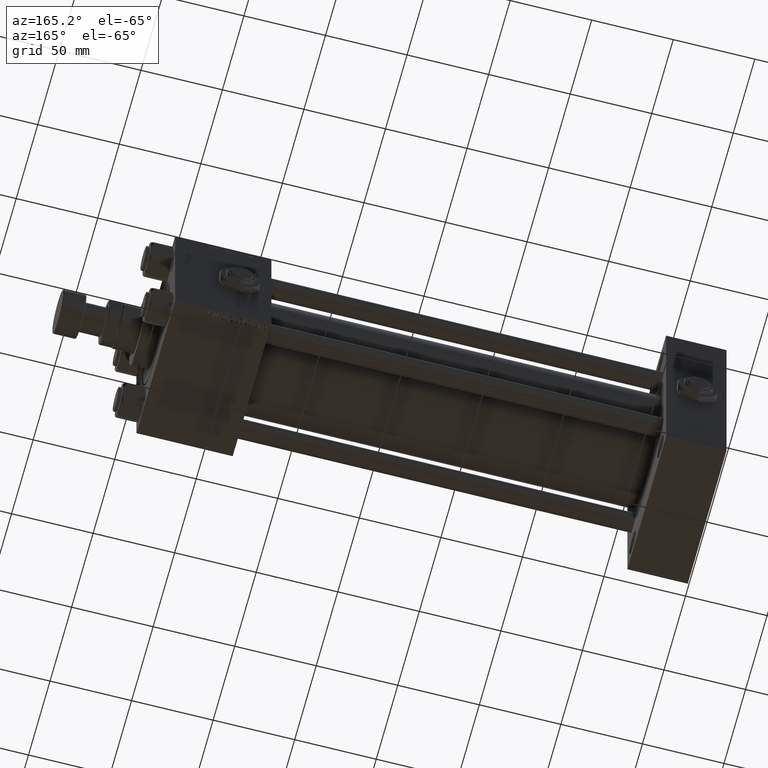
[diagram: clean part render]
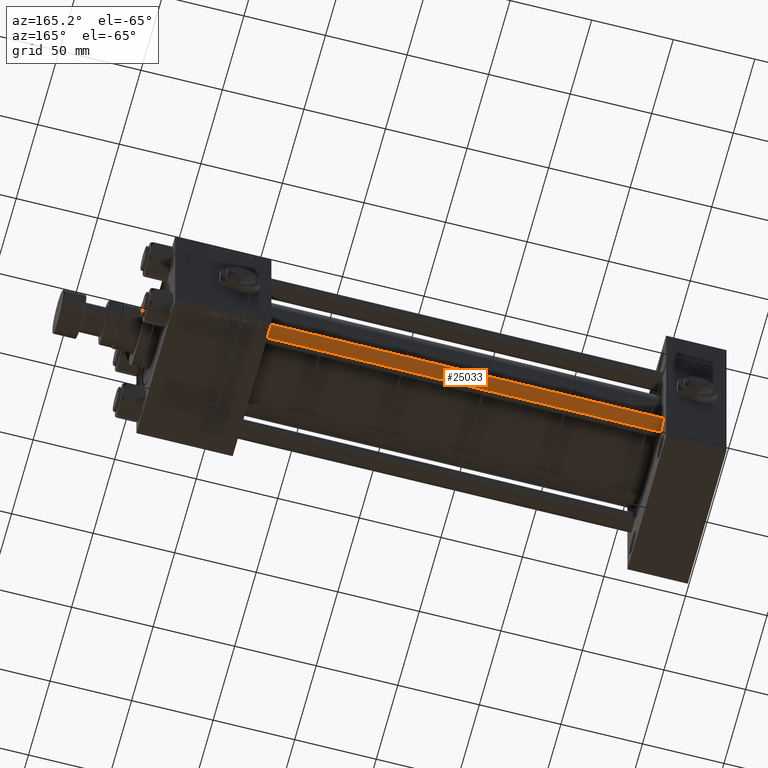
[diagram: same view with one face highlighted and labeled with its STEP entity id]
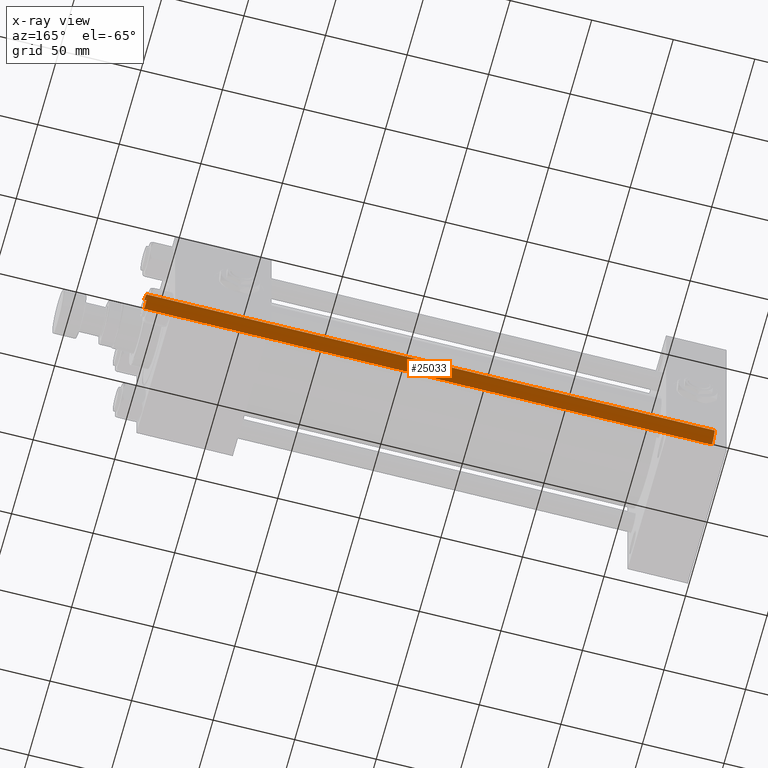
[diagram: x-ray of the same camera — body ghosted, the highlighted face saturated]
A machine part, auxiliary view. The second image highlights one B-rep face of the part: STEP entity #25033.
The next image is the same camera in x-ray: the body ghosted, the highlighted face saturated — about 0% of this face is hidden behind the body in this view.
In plain terms, the highlighted cylindrical surface (edge-blend (fillet) strip) has radius 6 mm, axis along (-1, 0, 0).
Its self-contained STEP definition (entity closure, byte-faithful):
#87 = DIRECTION ( 'NONE',  ( -0.000000000000000000, -0.000000000000000000, -1.000000000000000000 ) ) ;
#224 = DIRECTION ( 'NONE',  ( 1.000000000000000000, 0.000000000000000000, 0.000000000000000000 ) ) ;
#267 = DIRECTION ( 'NONE',  ( 1.000000000000000000, 0.000000000000000000, 0.000000000000000000 ) ) ;
#1106 = CIRCLE ( 'NONE', #41027, 6.000000000000000888 ) ;
#1336 = EDGE_CURVE ( 'NONE', #21542, #2844, #39278, .T. ) ;
#2844 = VERTEX_POINT ( 'NONE', #48236 ) ;
#3110 = EDGE_CURVE ( 'NONE', #14592, #42443, #1106, .T. ) ;
#3731 = DIRECTION ( 'NONE',  ( -0.000000000000000000, -0.000000000000000000, 1.000000000000000000 ) ) ;
#4576 = EDGE_CURVE ( 'NONE', #21542, #42443, #12332, .T. ) ;
#9171 = EDGE_LOOP ( 'NONE', ( #9576, #41126, #20007, #14431 ) ) ;
#9251 = CARTESIAN_POINT ( 'NONE',  ( 6.000000000000000888, 7.347880794884120722E-16, 348.5000000000000568 ) ) ;
#9576 = ORIENTED_EDGE ( 'NONE', *, *, #4576, .F. ) ;
#12332 = LINE ( 'NONE', #43966, #27568 ) ;
#12475 = CARTESIAN_POINT ( 'NONE',  ( 0.000000000000000000, 0.000000000000000000, 348.5000000000000568 ) ) ;
#14431 = ORIENTED_EDGE ( 'NONE', *, *, #3110, .T. ) ;
#14507 = CYLINDRICAL_SURFACE ( 'NONE', #41012, 6.000000000000000888 ) ;
#14592 = VERTEX_POINT ( 'NONE', #18352 ) ;
#14910 = VECTOR ( 'NONE', #20105, 1000.000000000000000 ) ;
#18352 = CARTESIAN_POINT ( 'NONE',  ( -6.000000000000000888, 0.000000000000000000, 0.5000000000000559552 ) ) ;
#20007 = ORIENTED_EDGE ( 'NONE', *, *, #31230, .T. ) ;
#20105 = DIRECTION ( 'NONE',  ( -0.000000000000000000, -0.000000000000000000, -1.000000000000000000 ) ) ;
#20648 = LINE ( 'NONE', #44042, #14910 ) ;
#20975 = DIRECTION ( 'NONE',  ( 0.000000000000000000, 0.000000000000000000, -1.000000000000000000 ) ) ;
#21542 = VERTEX_POINT ( 'NONE', #9251 ) ;
#25033 = ADVANCED_FACE ( 'NONE', ( #51677 ), #14507, .T. ) ;
#25697 = AXIS2_PLACEMENT_3D ( 'NONE', #12475, #20975, #224 ) ;
#27568 = VECTOR ( 'NONE', #87, 1000.000000000000000 ) ;
#29268 = CARTESIAN_POINT ( 'NONE',  ( 6.000000000000000888, 7.347880794884120722E-16, 0.5000000000000559552 ) ) ;
#30709 = DIRECTION ( 'NONE',  ( -1.000000000000000000, 0.000000000000000000, 0.000000000000000000 ) ) ;
#30974 = DIRECTION ( 'NONE',  ( -0.000000000000000000, -0.000000000000000000, -1.000000000000000000 ) ) ;
#31230 = EDGE_CURVE ( 'NONE', #2844, #14592, #20648, .T. ) ;
#39278 = CIRCLE ( 'NONE', #25697, 6.000000000000000888 ) ;
#41012 = AXIS2_PLACEMENT_3D ( 'NONE', #42416, #30974, #30709 ) ;
#41027 = AXIS2_PLACEMENT_3D ( 'NONE', #44398, #3731, #267 ) ;
#41126 = ORIENTED_EDGE ( 'NONE', *, *, #1336, .T. ) ;
#42416 = CARTESIAN_POINT ( 'NONE',  ( 0.000000000000000000, 0.000000000000000000, 349.0000000000000000 ) ) ;
#42443 = VERTEX_POINT ( 'NONE', #29268 ) ;
#43966 = CARTESIAN_POINT ( 'NONE',  ( 6.000000000000000888, 7.347880794884120722E-16, 349.0000000000000000 ) ) ;
#44042 = CARTESIAN_POINT ( 'NONE',  ( -6.000000000000000888, 0.000000000000000000, 349.0000000000000000 ) ) ;
#44398 = CARTESIAN_POINT ( 'NONE',  ( 0.000000000000000000, 0.000000000000000000, 0.5000000000000559552 ) ) ;
#48236 = CARTESIAN_POINT ( 'NONE',  ( -6.000000000000000888, 0.000000000000000000, 348.5000000000000568 ) ) ;
#51677 = FACE_OUTER_BOUND ( 'NONE', #9171, .T. ) ;